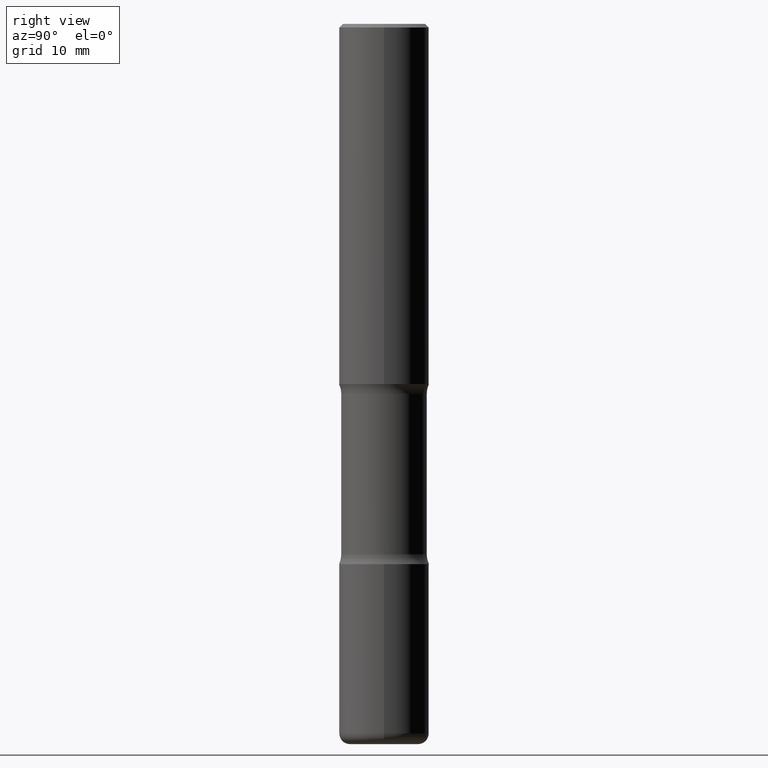
[diagram: clean part render]
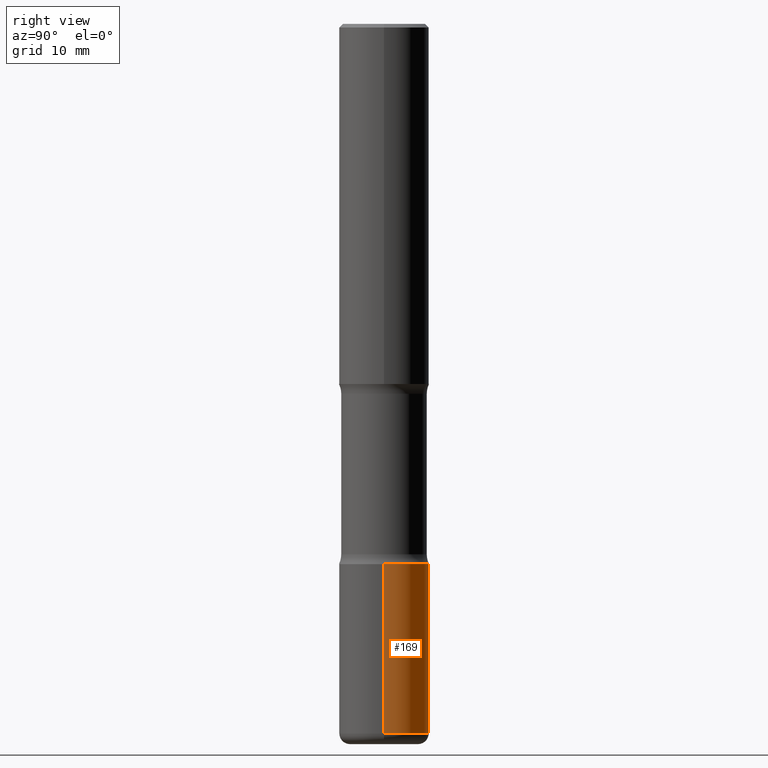
[diagram: same view with one face highlighted and labeled with its STEP entity id]
A machine part, right view. The second image highlights one B-rep face of the part: STEP entity #169.
In plain terms, the highlighted cylindrical surface (partial cylindrical patch) has radius 6.35 mm, axis along (-0, 0, 1).
Its self-contained STEP definition (entity closure, byte-faithful):
#19 = CARTESIAN_POINT ( 'NONE',  ( -0.2500000000000002776, -1.033908340638546235E-14, -3.000000000000000444 ) ) ;
#32 = DIRECTION ( 'NONE',  ( -2.445468806185136597E-29, 3.491481338843145583E-15, 1.000000000000000000 ) ) ;
#39 = CARTESIAN_POINT ( 'NONE',  ( 0.000000000000000000, 0.000000000000000000, 0.000000000000000000 ) ) ;
#103 = EDGE_CURVE ( 'NONE', #399, #403, #450, .T. ) ;
#151 = ORIENTED_EDGE ( 'NONE', *, *, #347, .F. ) ;
#154 = VECTOR ( 'NONE', #215, 39.37007874015748143 ) ;
#169 = ADVANCED_FACE ( 'NONE', ( #434 ), #443, .T. ) ;
#191 = VECTOR ( 'NONE', #257, 39.37007874015748143 ) ;
#196 = LINE ( 'NONE', #451, #191 ) ;
#202 = DIRECTION ( 'NONE',  ( -2.445468806185136597E-29, 3.491481338843145583E-15, 1.000000000000000000 ) ) ;
#214 = DIRECTION ( 'NONE',  ( -2.445468806185136597E-29, 3.491481338843145583E-15, 1.000000000000000000 ) ) ;
#215 = DIRECTION ( 'NONE',  ( -2.445468806185136877E-29, 3.491481338843145188E-15, 1.000000000000000000 ) ) ;
#222 = EDGE_CURVE ( 'NONE', #373, #423, #196, .T. ) ;
#234 = ORIENTED_EDGE ( 'NONE', *, *, #285, .T. ) ;
#257 = DIRECTION ( 'NONE',  ( -2.445468806185136877E-29, 3.491481338843145188E-15, 1.000000000000000000 ) ) ;
#285 = EDGE_CURVE ( 'NONE', #373, #399, #330, .T. ) ;
#286 = CARTESIAN_POINT ( 'NONE',  ( 0.2500000000000003331, -1.550217714446356385E-14, -3.939999999999999947 ) ) ;
#288 = CIRCLE ( 'NONE', #507, 0.2500000000000002776 ) ;
#295 = ORIENTED_EDGE ( 'NONE', *, *, #222, .F. ) ;
#327 = DIRECTION ( 'NONE',  ( 1.000000000000000000, -6.982962677686270655E-15, 0.000000000000000000 ) ) ;
#330 = CIRCLE ( 'NONE', #488, 0.2500000000000003886 ) ;
#342 = CARTESIAN_POINT ( 'NONE',  ( 9.635147096369438236E-29, -1.375643647504199401E-14, -3.939999999999999947 ) ) ;
#347 = EDGE_CURVE ( 'NONE', #423, #403, #288, .T. ) ;
#373 = VERTEX_POINT ( 'NONE', #286 ) ;
#399 = VERTEX_POINT ( 'NONE', #528 ) ;
#403 = VERTEX_POINT ( 'NONE', #19 ) ;
#405 = AXIS2_PLACEMENT_3D ( 'NONE', #39, #214, #530 ) ;
#409 = CARTESIAN_POINT ( 'NONE',  ( 0.2500000000000002776, -1.222018468595100619E-14, -3.000000000000000444 ) ) ;
#423 = VERTEX_POINT ( 'NONE', #409 ) ;
#434 = FACE_OUTER_BOUND ( 'NONE', #532, .T. ) ;
#443 = CYLINDRICAL_SURFACE ( 'NONE', #405, 0.2500000000000003331 ) ;
#445 = CARTESIAN_POINT ( 'NONE',  ( -0.2500000000000003331, 1.776356839400252831E-15, -1.229733772563727987E-29 ) ) ;
#450 = LINE ( 'NONE', #445, #154 ) ;
#451 = CARTESIAN_POINT ( 'NONE',  ( 0.2500000000000003331, -1.745740669421569044E-15, 1.219044193948985630E-29 ) ) ;
#478 = DIRECTION ( 'NONE',  ( 1.000000000000000000, -6.982962677686267499E-15, 0.000000000000000000 ) ) ;
#488 = AXIS2_PLACEMENT_3D ( 'NONE', #342, #32, #478 ) ;
#507 = AXIS2_PLACEMENT_3D ( 'NONE', #510, #202, #327 ) ;
#510 = CARTESIAN_POINT ( 'NONE',  ( 7.336406418555409790E-29, -1.047444401652943635E-14, -3.000000000000000444 ) ) ;
#528 = CARTESIAN_POINT ( 'NONE',  ( -0.2500000000000003331, -1.198007963564174197E-14, -3.939999999999999947 ) ) ;
#530 = DIRECTION ( 'NONE',  ( 1.000000000000000000, -6.982962677686266711E-15, 4.876176775795935793E-29 ) ) ;
#532 = EDGE_LOOP ( 'NONE', ( #234, #541, #151, #295 ) ) ;
#541 = ORIENTED_EDGE ( 'NONE', *, *, #103, .T. ) ;